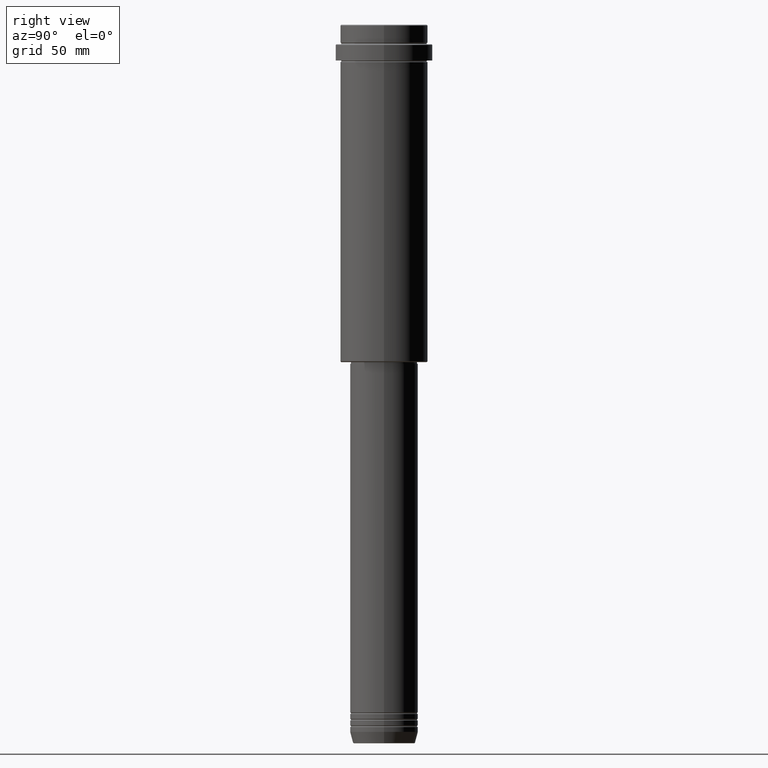
[diagram: clean part render]
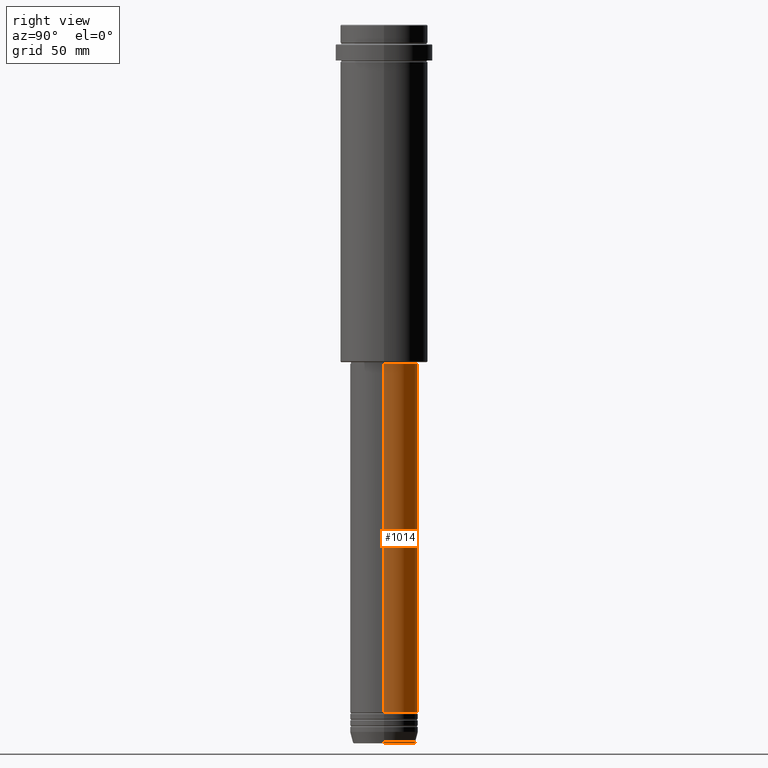
[diagram: same view with one face highlighted and labeled with its STEP entity id]
A machine part, right view. The second image highlights one B-rep face of the part: STEP entity #1014.
In plain terms, the highlighted cylindrical surface (edge-blend (fillet) strip) has radius 21 mm, axis along (-0, -0, 1).
Its self-contained STEP definition (entity closure, byte-faithful):
#43 = DIRECTION ( 'NONE',  ( -0.000000000000000000, -0.000000000000000000, 1.000000000000000000 ) ) ;
#51 = CARTESIAN_POINT ( 'NONE',  ( 0.000000000000000000, 0.000000000000000000, -423.9999999999998863 ) ) ;
#124 = CARTESIAN_POINT ( 'NONE',  ( -21.00000000000000000, 2.571758278209441661E-15, -423.9999999999998863 ) ) ;
#161 = AXIS2_PLACEMENT_3D ( 'NONE', #51, #43, #1027 ) ;
#170 = FACE_OUTER_BOUND ( 'NONE', #1358, .T. ) ;
#197 = ORIENTED_EDGE ( 'NONE', *, *, #714, .F. ) ;
#273 = VECTOR ( 'NONE', #886, 1000.000000000000000 ) ;
#279 = DIRECTION ( 'NONE',  ( 1.000000000000000000, 0.000000000000000000, 0.000000000000000000 ) ) ;
#324 = CIRCLE ( 'NONE', #161, 21.00000000000000000 ) ;
#401 = DIRECTION ( 'NONE',  ( 1.000000000000000000, 0.000000000000000000, 0.000000000000000000 ) ) ;
#450 = LINE ( 'NONE', #1327, #620 ) ;
#516 = ORIENTED_EDGE ( 'NONE', *, *, #1031, .F. ) ;
#532 = DIRECTION ( 'NONE',  ( -0.000000000000000000, -0.000000000000000000, 1.000000000000000000 ) ) ;
#574 = DIRECTION ( 'NONE',  ( -0.000000000000000000, -0.000000000000000000, 1.000000000000000000 ) ) ;
#612 = CARTESIAN_POINT ( 'NONE',  ( 0.000000000000000000, 0.000000000000000000, 0.000000000000000000 ) ) ;
#615 = VERTEX_POINT ( 'NONE', #124 ) ;
#620 = VECTOR ( 'NONE', #574, 1000.000000000000000 ) ;
#635 = CYLINDRICAL_SURFACE ( 'NONE', #1043, 20.99999999999999645 ) ;
#640 = VERTEX_POINT ( 'NONE', #690 ) ;
#690 = CARTESIAN_POINT ( 'NONE',  ( 20.99999999999999645, 0.000000000000000000, -208.9999999999999432 ) ) ;
#714 = EDGE_CURVE ( 'NONE', #640, #1414, #1108, .T. ) ;
#779 = CARTESIAN_POINT ( 'NONE',  ( 20.99999999999999645, 0.000000000000000000, 0.000000000000000000 ) ) ;
#786 = CARTESIAN_POINT ( 'NONE',  ( -20.99999999999999645, 2.571758278209441267E-15, -208.9999999999999432 ) ) ;
#810 = ORIENTED_EDGE ( 'NONE', *, *, #1053, .T. ) ;
#857 = EDGE_CURVE ( 'NONE', #959, #615, #324, .T. ) ;
#886 = DIRECTION ( 'NONE',  ( -0.000000000000000000, -0.000000000000000000, 1.000000000000000000 ) ) ;
#959 = VERTEX_POINT ( 'NONE', #1412 ) ;
#1004 = LINE ( 'NONE', #779, #273 ) ;
#1014 = ADVANCED_FACE ( 'NONE', ( #170 ), #635, .T. ) ;
#1027 = DIRECTION ( 'NONE',  ( 1.000000000000000000, 0.000000000000000000, 0.000000000000000000 ) ) ;
#1031 = EDGE_CURVE ( 'NONE', #959, #640, #1004, .T. ) ;
#1043 = AXIS2_PLACEMENT_3D ( 'NONE', #612, #532, #401 ) ;
#1053 = EDGE_CURVE ( 'NONE', #615, #1414, #450, .T. ) ;
#1108 = CIRCLE ( 'NONE', #1265, 20.99999999999999645 ) ;
#1257 = DIRECTION ( 'NONE',  ( -0.000000000000000000, -0.000000000000000000, 1.000000000000000000 ) ) ;
#1265 = AXIS2_PLACEMENT_3D ( 'NONE', #1371, #1257, #279 ) ;
#1269 = ORIENTED_EDGE ( 'NONE', *, *, #857, .T. ) ;
#1327 = CARTESIAN_POINT ( 'NONE',  ( -20.99999999999999645, 2.571758278209441267E-15, 0.000000000000000000 ) ) ;
#1358 = EDGE_LOOP ( 'NONE', ( #1269, #810, #197, #516 ) ) ;
#1371 = CARTESIAN_POINT ( 'NONE',  ( 0.000000000000000000, 0.000000000000000000, -208.9999999999999432 ) ) ;
#1412 = CARTESIAN_POINT ( 'NONE',  ( 21.00000000000000000, 0.000000000000000000, -423.9999999999998863 ) ) ;
#1414 = VERTEX_POINT ( 'NONE', #786 ) ;